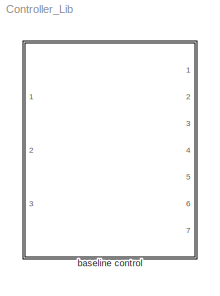
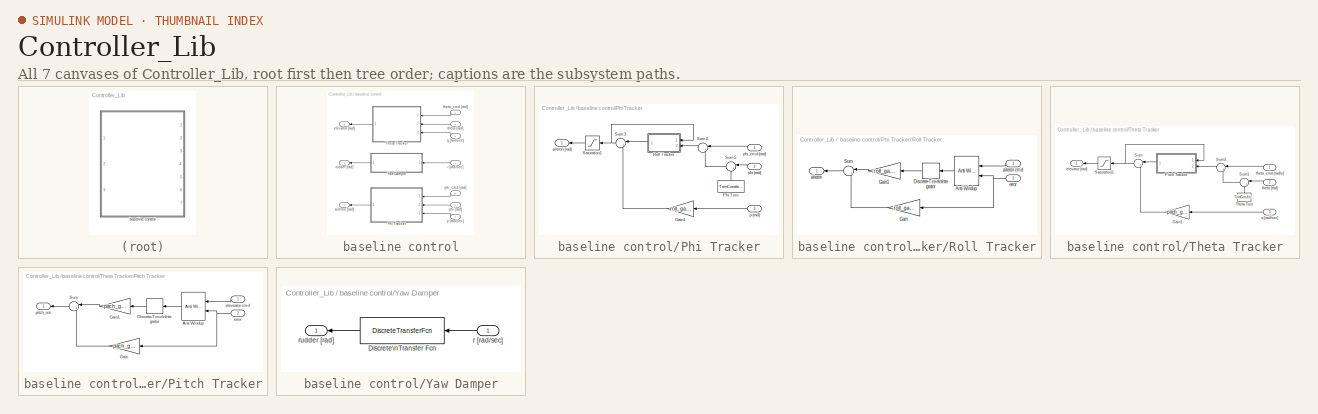
[diagram: thumbnail index - all 7 canvases of the model, root first then tree order]
MODEL Controller_Lib
KIND library
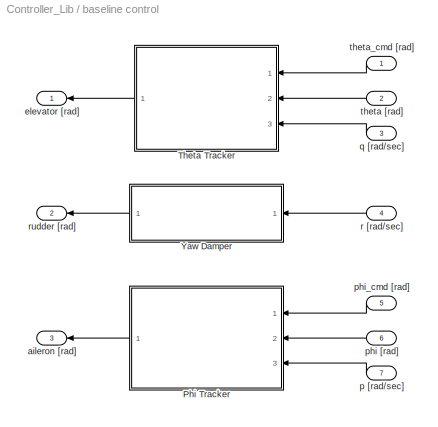
BLOCK [SubSystem] baseline control
  FunctionWithSeparateData = off
  MaskHideContents = off
  MinAlgLoopOccurrences = off
  Opaque = off
  Ports = [7, 3]
  PropExecContextOutsideSubsystem = off
  RTWSystemCode = Auto
  RequestExecContextInheritance = off
  SID = 1
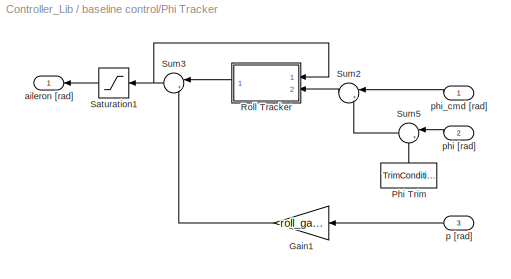
BLOCK [SubSystem] baseline control/Phi Tracker
  FunctionWithSeparateData = off
  MaskHideContents = off
  MinAlgLoopOccurrences = off
  Opaque = off
  Ports = [3, 1]
  PropExecContextOutsideSubsystem = off
  RTWSystemCode = Auto
  RequestExecContextInheritance = off
  SID = 9
BLOCK [Gain] baseline control/Phi Tracker/Gain1
  Gain = roll_gains(3)
  OutDataTypeStr = Inherit: Inherit via internal rule
  ParamDataTypeStr = Inherit: Inherit via internal rule
  SID = 13
  SaturateOnIntegerOverflow = off
BLOCK [Constant] baseline control/Phi Tracker/Phi Trim
  SID = 14
  Value = TrimCondition.AttitudeIni(1)
BLOCK [SubSystem] baseline control/Phi Tracker/Roll Tracker
  FunctionWithSeparateData = off
  MaskHideContents = off
  MinAlgLoopOccurrences = off
  Opaque = off
  Ports = [2, 1]
  PropExecContextOutsideSubsystem = off
  RTWSystemCode = Auto
  RequestExecContextInheritance = off
  SID = 15
BLOCK [Reference] baseline control/Phi Tracker/Roll Tracker/Anti Windup  REF=Actuator_Lib/Anti Windup
  MAX_DEF = AC.Actuator.r_aileron.PosLim-TrimCondition.Inputs.CtrlSurf(3)
  MIN_DEF = AC.Actuator.r_aileron.NegLim-TrimCondition.Inputs.CtrlSurf(3)
  Ports = [2, 1]
  SID = 18
  SourceBlock = Actuator_Lib/Anti Windup
  SourceType = Integrator Anti-Windup
  gain_sign = off
BLOCK [DiscreteIntegrator] baseline control/Phi Tracker/Roll Tracker/Discrete-Time\nIntegrator
  ICPrevOutput = DiscIntNeverNeededParam
  ICPrevScaledInput = DiscIntNeverNeededParam
  Ports = [1, 1]
  SID = 19
  SampleTime = .02
BLOCK [Gain] baseline control/Phi Tracker/Roll Tracker/Gain
  Gain = roll_gains(1)
  OutDataTypeStr = Inherit: Inherit via internal rule
  ParamDataTypeStr = Inherit: Inherit via internal rule
  SID = 20
  SampleTime = SampleTime
  SaturateOnIntegerOverflow = off
BLOCK [Gain] baseline control/Phi Tracker/Roll Tracker/Gain1
  Gain = roll_gains(2)
  OutDataTypeStr = Inherit: Inherit via internal rule
  ParamDataTypeStr = Inherit: Inherit via internal rule
  SID = 21
  SampleTime = SampleTime
  SaturateOnIntegerOverflow = off
BLOCK [Sum] baseline control/Phi Tracker/Roll Tracker/Sum
  IconShape = round
  InputSameDT = off
  Inputs = |++
  OutDataTypeStr = Inherit: Inherit via internal rule
  Ports = [2, 1]
  SID = 22
  SampleTime = .02
  SaturateOnIntegerOverflow = off
BLOCK [Outport] baseline control/Phi Tracker/Roll Tracker/aileron
  IconDisplay = Port number
  SID = 23
BLOCK [Inport] baseline control/Phi Tracker/Roll Tracker/aileron cmd
  IconDisplay = Port number
  SID = 16
BLOCK [Inport] baseline control/Phi Tracker/Roll Tracker/error
  IconDisplay = Port number
  Port = 2
  SID = 17
BLOCK [Saturate] baseline control/Phi Tracker/Saturation1
  InputPortMap = u0
  LowerLimit = AC.Actuator.r_aileron.NegLim-TrimCondition.Inputs.CtrlSurf(2)*.5
  Ports = [1, 1]
  SID = 24
  SampleTime = SampleTime
  UpperLimit = AC.Actuator.r_aileron.PosLim-TrimCondition.Inputs.CtrlSurf(2)*.5
BLOCK [Sum] baseline control/Phi Tracker/Sum2
  IconShape = round
  InputSameDT = off
  Inputs = |+-
  OutDataTypeStr = Inherit: Inherit via internal rule
  Ports = [2, 1]
  SID = 25
  SampleTime = SampleTime
  SaturateOnIntegerOverflow = off
BLOCK [Sum] baseline control/Phi Tracker/Sum3
  IconShape = round
  InputSameDT = off
  Inputs = |+-
  OutDataTypeStr = Inherit: Inherit via internal rule
  Ports = [2, 1]
  SID = 26
  SampleTime = SampleTime
  SaturateOnIntegerOverflow = off
BLOCK [Sum] baseline control/Phi Tracker/Sum5
  IconShape = round
  InputSameDT = off
  Inputs = |+-
  OutDataTypeStr = Inherit: Inherit via internal rule
  Ports = [2, 1]
  SID = 27
  SampleTime = SampleTime
  SaturateOnIntegerOverflow = off
BLOCK [Outport] baseline control/Phi Tracker/aileron [rad]
  IconDisplay = Port number
  SID = 28
BLOCK [Inport] baseline control/Phi Tracker/p [rad]
  IconDisplay = Port number
  Port = 3
  SID = 12
BLOCK [Inport] baseline control/Phi Tracker/phi [rad]
  IconDisplay = Port number
  Port = 2
  SID = 11
BLOCK [Inport] baseline control/Phi Tracker/phi_cmd [rad]
  IconDisplay = Port number
  SID = 10
BLOCK [SubSystem] baseline control/Theta Tracker
  FunctionWithSeparateData = off
  MaskHideContents = off
  MinAlgLoopOccurrences = off
  Opaque = off
  Ports = [3, 1]
  PropExecContextOutsideSubsystem = off
  RTWSystemCode = Auto
  RequestExecContextInheritance = off
  SID = 29
BLOCK [Constant] baseline control/Theta Tracker/ Theta Trim
  SID = 33
  Value = TrimCondition.AttitudeIni(2)
BLOCK [Gain] baseline control/Theta Tracker/Gain1
  Gain = pitch_gains(3)
  OutDataTypeStr = Inherit: Inherit via internal rule
  ParamDataTypeStr = Inherit: Inherit via internal rule
  SID = 57
  SaturateOnIntegerOverflow = off
BLOCK [SubSystem] baseline control/Theta Tracker/Pitch Tracker
  FunctionWithSeparateData = off
  MaskHideContents = off
  MinAlgLoopOccurrences = off
  Opaque = off
  Ports = [2, 1]
  PropExecContextOutsideSubsystem = off
  RTWSystemCode = Auto
  RequestExecContextInheritance = off
  SID = 35
BLOCK [Reference] baseline control/Theta Tracker/Pitch Tracker/Anti Windup  REF=Actuator_Lib/Anti Windup
  MAX_DEF = AC.Actuator.elevator.PosLim-TrimCondition.Inputs.CtrlSurf(1)-15*pi/180
  MIN_DEF = AC.Actuator.elevator.NegLim-TrimCondition.Inputs.CtrlSurf(1)+15*pi/180
  Ports = [2, 1]
  SID = 38
  SourceBlock = Actuator_Lib/Anti Windup
  SourceType = Integrator Anti-Windup
  gain_sign = off
BLOCK [DiscreteIntegrator] baseline control/Theta Tracker/Pitch Tracker/Discrete-Time\nIntegrator
  ICPrevOutput = DiscIntNeverNeededParam
  ICPrevScaledInput = DiscIntNeverNeededParam
  Ports = [1, 1]
  SID = 39
  SampleTime = .02
BLOCK [Gain] baseline control/Theta Tracker/Pitch Tracker/Gain
  Gain = pitch_gains(1)
  OutDataTypeStr = Inherit: Inherit via internal rule
  ParamDataTypeStr = Inherit: Inherit via internal rule
  SID = 40
  SaturateOnIntegerOverflow = off
BLOCK [Gain] baseline control/Theta Tracker/Pitch Tracker/Gain1
  Gain = pitch_gains(2)
  OutDataTypeStr = Inherit: Inherit via internal rule
  ParamDataTypeStr = Inherit: Inherit via internal rule
  SID = 41
  SaturateOnIntegerOverflow = off
BLOCK [Sum] baseline control/Theta Tracker/Pitch Tracker/Sum
  IconShape = round
  InputSameDT = off
  Inputs = |++
  OutDataTypeStr = Inherit: Inherit via internal rule
  Ports = [2, 1]
  SID = 42
  SaturateOnIntegerOverflow = off
BLOCK [Inport] baseline control/Theta Tracker/Pitch Tracker/eleveator cmd
  IconDisplay = Port number
  SID = 36
BLOCK [Inport] baseline control/Theta Tracker/Pitch Tracker/error
  IconDisplay = Port number
  Port = 2
  SID = 37
BLOCK [Outport] baseline control/Theta Tracker/Pitch Tracker/pitch_out
  IconDisplay = Port number
  SID = 43
BLOCK [Saturate] baseline control/Theta Tracker/Saturation1
  InputPortMap = u0
  LowerLimit = AC.Actuator.elevator.NegLim-TrimCondition.Inputs.CtrlSurf(1)
  Ports = [1, 1]
  SID = 44
  SampleTime = SampleTime
  UpperLimit = AC.Actuator.elevator.PosLim-TrimCondition.Inputs.CtrlSurf(1)
BLOCK [Sum] baseline control/Theta Tracker/Sum
  IconShape = round
  InputSameDT = off
  Inputs = |+-
  OutDataTypeStr = Inherit: Inherit via internal rule
  Ports = [2, 1]
  SID = 45
  SampleTime = SampleTime
  SaturateOnIntegerOverflow = off
BLOCK [Sum] baseline control/Theta Tracker/Sum1
  IconShape = round
  InputSameDT = off
  Inputs = |+-
  OutDataTypeStr = Inherit: Inherit via internal rule
  Ports = [2, 1]
  SID = 46
  SampleTime = SampleTime
  SaturateOnIntegerOverflow = off
BLOCK [Sum] baseline control/Theta Tracker/Sum2
  IconShape = round
  InputSameDT = off
  Inputs = |+-
  OutDataTypeStr = Inherit: Inherit via internal rule
  Ports = [2, 1]
  SID = 47
  SampleTime = SampleTime
  SaturateOnIntegerOverflow = off
BLOCK [Outport] baseline control/Theta Tracker/elevator [rad]
  IconDisplay = Port number
  SID = 48
BLOCK [Inport] baseline control/Theta Tracker/q [rad//sec]
  IconDisplay = Port number
  Port = 3
  SID = 32
BLOCK [Inport] baseline control/Theta Tracker/theta [rad]
  IconDisplay = Port number
  Port = 2
  SID = 31
BLOCK [Inport] baseline control/Theta Tracker/theta_cmd [rad//s]
  IconDisplay = Port number
  SID = 30
BLOCK [SubSystem] baseline control/Yaw Damper
  FunctionWithSeparateData = off
  MaskHideContents = off
  MinAlgLoopOccurrences = off
  Opaque = off
  Ports = [1, 1]
  PropExecContextOutsideSubsystem = off
  RTWSystemCode = Auto
  RequestExecContextInheritance = off
  SID = 49
BLOCK [DiscreteTransferFcn] baseline control/Yaw Damper/Discrete\nTransfer Fcn
  Denominator = yaw_damper_den
  InputPortMap = u0
  Numerator = yaw_damper_num
  Ports = [1, 1]
  SID = 51
  SampleTime = SampleTime
BLOCK [Inport] baseline control/Yaw Damper/r [rad//sec]
  IconDisplay = Port number
  SID = 50
BLOCK [Outport] baseline control/Yaw Damper/rudder [rad]
  IconDisplay = Port number
  SID = 52
BLOCK [Outport] baseline control/aileron [rad]
  IconDisplay = Port number
  Port = 3
  SID = 55
BLOCK [Outport] baseline control/elevator [rad]
  IconDisplay = Port number
  SID = 53
BLOCK [Inport] baseline control/p [rad//sec]
  IconDisplay = Port number
  Port = 7
  SID = 8
BLOCK [Inport] baseline control/phi [rad]
  IconDisplay = Port number
  Port = 6
  SID = 7
BLOCK [Inport] baseline control/phi_cmd [rad]
  IconDisplay = Port number
  Port = 5
  SID = 6
BLOCK [Inport] baseline control/q [rad//sec]
  IconDisplay = Port number
  Port = 3
  SID = 4
BLOCK [Inport] baseline control/r [rad//sec]
  IconDisplay = Port number
  Port = 4
  SID = 5
BLOCK [Outport] baseline control/rudder [rad]
  IconDisplay = Port number
  Port = 2
  SID = 54
BLOCK [Inport] baseline control/theta [rad]
  IconDisplay = Port number
  Port = 2
  SID = 3
BLOCK [Inport] baseline control/theta_cmd [rad]
  IconDisplay = Port number
  SID = 2
LINE baseline control/Phi Tracker/Gain1:1 -> baseline control/Phi Tracker/Sum3:2
LINE baseline control/Phi Tracker/Phi Trim:1 -> baseline control/Phi Tracker/Sum5:2
LINE baseline control/Phi Tracker/Roll Tracker/Anti Windup:1 -> baseline control/Phi Tracker/Roll Tracker/Discrete-Time\nIntegrator:1
LINE baseline control/Phi Tracker/Roll Tracker/Discrete-Time\nIntegrator:1 -> baseline control/Phi Tracker/Roll Tracker/Gain1:1
LINE baseline control/Phi Tracker/Roll Tracker/Gain1:1 -> baseline control/Phi Tracker/Roll Tracker/Sum:1
LINE baseline control/Phi Tracker/Roll Tracker/Gain:1 -> baseline control/Phi Tracker/Roll Tracker/Sum:2
LINE baseline control/Phi Tracker/Roll Tracker/Sum:1 -> baseline control/Phi Tracker/Roll Tracker/aileron:1
LINE baseline control/Phi Tracker/Roll Tracker/aileron cmd:1 -> baseline control/Phi Tracker/Roll Tracker/Anti Windup:1
NET baseline control/Phi Tracker/Roll Tracker/error:1 -> baseline control/Phi Tracker/Roll Tracker/Anti Windup:2, baseline control/Phi Tracker/Roll Tracker/Gain:1
LINE baseline control/Phi Tracker/Roll Tracker:1 -> baseline control/Phi Tracker/Sum3:1
LINE baseline control/Phi Tracker/Saturation1:1 -> baseline control/Phi Tracker/aileron [rad]:1
LINE baseline control/Phi Tracker/Sum2:1 -> baseline control/Phi Tracker/Roll Tracker:2
NET baseline control/Phi Tracker/Sum3:1 -> baseline control/Phi Tracker/Roll Tracker:1, baseline control/Phi Tracker/Saturation1:1
LINE baseline control/Phi Tracker/Sum5:1 -> baseline control/Phi Tracker/Sum2:2
LINE baseline control/Phi Tracker/p [rad]:1 -> baseline control/Phi Tracker/Gain1:1
LINE baseline control/Phi Tracker/phi [rad]:1 -> baseline control/Phi Tracker/Sum5:1
LINE baseline control/Phi Tracker/phi_cmd [rad]:1 -> baseline control/Phi Tracker/Sum2:1
LINE baseline control/Phi Tracker:1 -> baseline control/aileron [rad]:1
LINE baseline control/Theta Tracker/ Theta Trim:1 -> baseline control/Theta Tracker/Sum1:2
LINE baseline control/Theta Tracker/Gain1:1 -> baseline control/Theta Tracker/Sum:2
LINE baseline control/Theta Tracker/Pitch Tracker/Anti Windup:1 -> baseline control/Theta Tracker/Pitch Tracker/Discrete-Time\nIntegrator:1
LINE baseline control/Theta Tracker/Pitch Tracker/Discrete-Time\nIntegrator:1 -> baseline control/Theta Tracker/Pitch Tracker/Gain1:1
LINE baseline control/Theta Tracker/Pitch Tracker/Gain1:1 -> baseline control/Theta Tracker/Pitch Tracker/Sum:1
LINE baseline control/Theta Tracker/Pitch Tracker/Gain:1 -> baseline control/Theta Tracker/Pitch Tracker/Sum:2
LINE baseline control/Theta Tracker/Pitch Tracker/Sum:1 -> baseline control/Theta Tracker/Pitch Tracker/pitch_out:1
LINE baseline control/Theta Tracker/Pitch Tracker/eleveator cmd:1 -> baseline control/Theta Tracker/Pitch Tracker/Anti Windup:1
NET baseline control/Theta Tracker/Pitch Tracker/error:1 -> baseline control/Theta Tracker/Pitch Tracker/Anti Windup:2, baseline control/Theta Tracker/Pitch Tracker/Gain:1
LINE baseline control/Theta Tracker/Pitch Tracker:1 -> baseline control/Theta Tracker/Sum:1
LINE baseline control/Theta Tracker/Saturation1:1 -> baseline control/Theta Tracker/elevator [rad]:1
LINE baseline control/Theta Tracker/Sum1:1 -> baseline control/Theta Tracker/Sum2:2
LINE baseline control/Theta Tracker/Sum2:1 -> baseline control/Theta Tracker/Pitch Tracker:2
NET baseline control/Theta Tracker/Sum:1 -> baseline control/Theta Tracker/Pitch Tracker:1, baseline control/Theta Tracker/Saturation1:1
LINE baseline control/Theta Tracker/q [rad//sec]:1 -> baseline control/Theta Tracker/Gain1:1
LINE baseline control/Theta Tracker/theta [rad]:1 -> baseline control/Theta Tracker/Sum1:1
LINE baseline control/Theta Tracker/theta_cmd [rad//s]:1 -> baseline control/Theta Tracker/Sum2:1
LINE baseline control/Theta Tracker:1 -> baseline control/elevator [rad]:1
LINE baseline control/Yaw Damper/Discrete\nTransfer Fcn:1 -> baseline control/Yaw Damper/rudder [rad]:1
LINE baseline control/Yaw Damper/r [rad//sec]:1 -> baseline control/Yaw Damper/Discrete\nTransfer Fcn:1
LINE baseline control/Yaw Damper:1 -> baseline control/rudder [rad]:1
LINE baseline control/p [rad//sec]:1 -> baseline control/Phi Tracker:3
LINE baseline control/phi [rad]:1 -> baseline control/Phi Tracker:2
LINE baseline control/phi_cmd [rad]:1 -> baseline control/Phi Tracker:1
LINE baseline control/q [rad//sec]:1 -> baseline control/Theta Tracker:3
LINE baseline control/r [rad//sec]:1 -> baseline control/Yaw Damper:1
LINE baseline control/theta [rad]:1 -> baseline control/Theta Tracker:2
LINE baseline control/theta_cmd [rad]:1 -> baseline control/Theta Tracker:1
note: NET lines group one-source signal fan-out (src -> all destinations, sorted); 1:1 wires keep LINE
